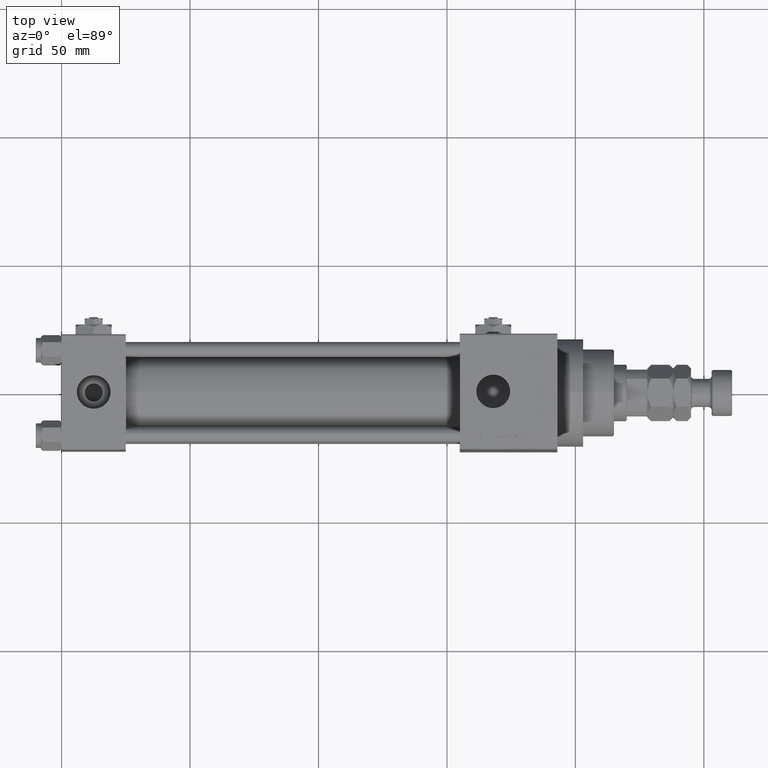
[diagram: clean part render]
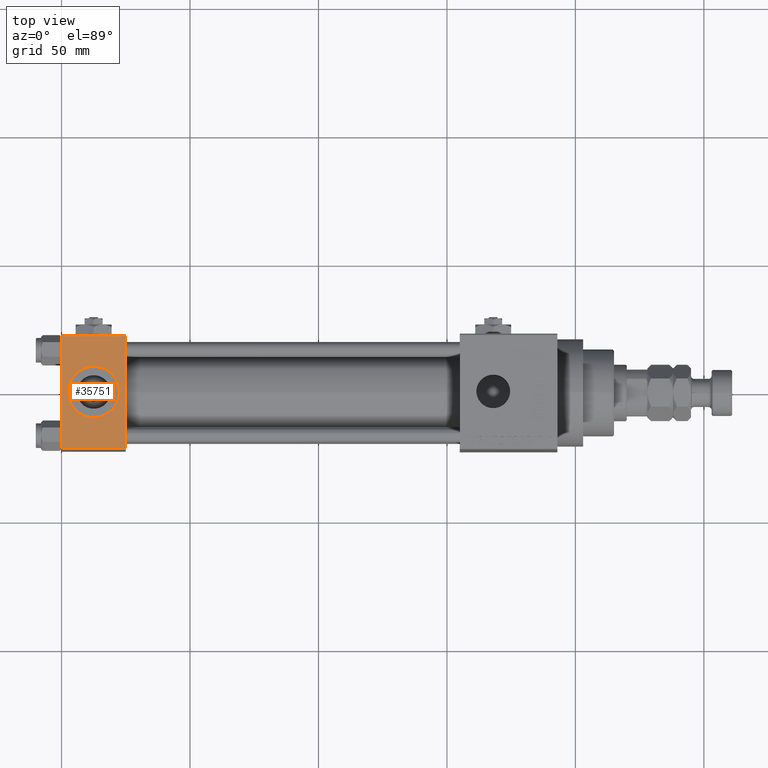
[diagram: same view with one face highlighted and labeled with its STEP entity id]
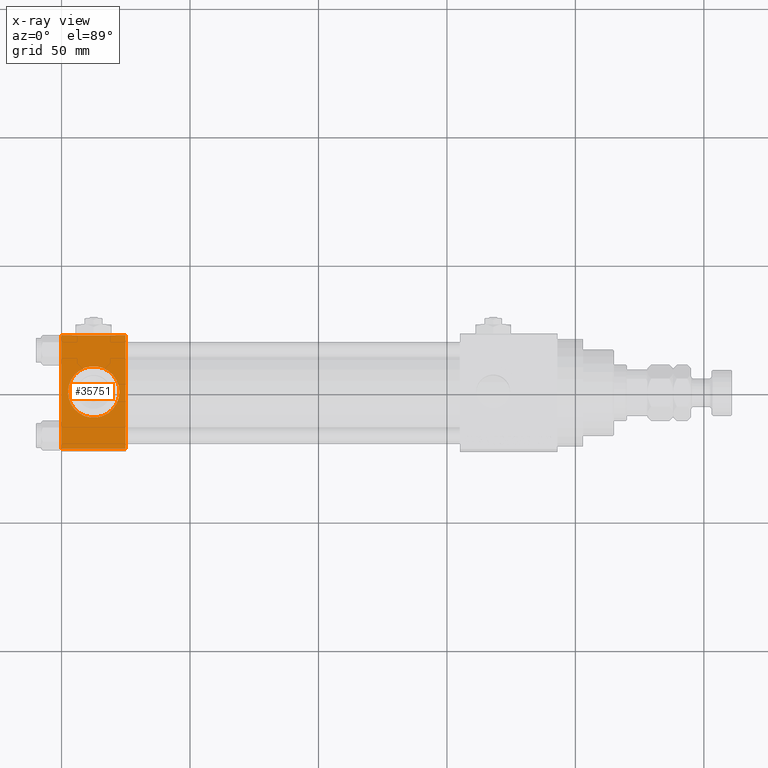
[diagram: x-ray of the same camera — body ghosted, the highlighted face saturated]
A machine part, top view. The second image highlights one B-rep face of the part: STEP entity #35751.
The next image is the same camera in x-ray: the body ghosted, the highlighted face saturated — about 0% of this face is hidden behind the body in this view.
In plain terms, the highlighted planar face has unit normal (0, 0, -1).
Its self-contained STEP definition (entity closure, byte-faithful):
#1350 = CARTESIAN_POINT ( 'NONE',  ( 0.000000000000000000, -21.99999999999997868, 22.50000000000000000 ) ) ;
#2895 = ORIENTED_EDGE ( 'NONE', *, *, #29159, .T. ) ;
#2974 = VECTOR ( 'NONE', #17215, 1000.000000000000000 ) ;
#3255 = CARTESIAN_POINT ( 'NONE',  ( 25.00000000000000000, -21.99999999999997868, 22.50000000000000000 ) ) ;
#4536 = AXIS2_PLACEMENT_3D ( 'NONE', #6333, #14544, #37424 ) ;
#4578 = CARTESIAN_POINT ( 'NONE',  ( 0.000000000000000000, 22.50000000000000000, 22.50000000000000355 ) ) ;
#4827 = LINE ( 'NONE', #4578, #48775 ) ;
#4933 = CARTESIAN_POINT ( 'NONE',  ( 12.50000000000000000, -1.734723475976807094E-15, 22.50000000000000000 ) ) ;
#5082 = EDGE_CURVE ( 'NONE', #30132, #36727, #36790, .T. ) ;
#6333 = CARTESIAN_POINT ( 'NONE',  ( 25.00000000000000000, 22.50000000000000000, 22.50000000000000355 ) ) ;
#12703 = EDGE_LOOP ( 'NONE', ( #26821, #26627 ) ) ;
#12728 = VERTEX_POINT ( 'NONE', #1350 ) ;
#13186 = CIRCLE ( 'NONE', #38610, 9.999999999999998224 ) ;
#14288 = FACE_BOUND ( 'NONE', #12703, .T. ) ;
#14544 = DIRECTION ( 'NONE',  ( 0.000000000000000000, 7.709882115452476934E-17, -1.000000000000000000 ) ) ;
#14819 = CARTESIAN_POINT ( 'NONE',  ( 12.50000000000000000, -1.734723475976807094E-15, 22.50000000000000000 ) ) ;
#16509 = CARTESIAN_POINT ( 'NONE',  ( 25.00000000000000000, -21.99999999999999289, 22.50000000000000000 ) ) ;
#17215 = DIRECTION ( 'NONE',  ( 0.000000000000000000, -1.000000000000000000, -7.709882115452476934E-17 ) ) ;
#17359 = CIRCLE ( 'NONE', #47690, 9.999999999999998224 ) ;
#17500 = CARTESIAN_POINT ( 'NONE',  ( 0.000000000000000000, 21.99999999999999289, 22.50000000000000355 ) ) ;
#19401 = EDGE_CURVE ( 'NONE', #43008, #40168, #13186, .T. ) ;
#20088 = DIRECTION ( 'NONE',  ( 0.000000000000000000, 0.000000000000000000, 1.000000000000000000 ) ) ;
#20491 = DIRECTION ( 'NONE',  ( 0.000000000000000000, -1.000000000000000000, -7.709882115452476934E-17 ) ) ;
#20839 = DIRECTION ( 'NONE',  ( 1.000000000000000000, 0.000000000000000000, 0.000000000000000000 ) ) ;
#21008 = CARTESIAN_POINT ( 'NONE',  ( 0.000000000000000000, 21.99999999999999289, 22.50000000000000355 ) ) ;
#21167 = VERTEX_POINT ( 'NONE', #3255 ) ;
#21177 = EDGE_CURVE ( 'NONE', #40168, #43008, #17359, .T. ) ;
#24163 = VECTOR ( 'NONE', #43747, 1000.000000000000000 ) ;
#24992 = EDGE_CURVE ( 'NONE', #12728, #21167, #36055, .T. ) ;
#26627 = ORIENTED_EDGE ( 'NONE', *, *, #19401, .F. ) ;
#26821 = ORIENTED_EDGE ( 'NONE', *, *, #21177, .F. ) ;
#28436 = CARTESIAN_POINT ( 'NONE',  ( 2.500000000000003997, -5.100766768294543310E-16, 22.50000000000000000 ) ) ;
#29159 = EDGE_CURVE ( 'NONE', #36727, #12728, #4827, .T. ) ;
#30132 = VERTEX_POINT ( 'NONE', #34623 ) ;
#30910 = CARTESIAN_POINT ( 'NONE',  ( 22.50000000000000000, -1.734723475976807094E-15, 22.50000000000000000 ) ) ;
#32145 = CARTESIAN_POINT ( 'NONE',  ( 25.00000000000000000, 22.50000000000000000, 22.50000000000000355 ) ) ;
#32952 = DIRECTION ( 'NONE',  ( -1.000000000000000000, 0.000000000000000000, 0.000000000000000000 ) ) ;
#34623 = CARTESIAN_POINT ( 'NONE',  ( 25.00000000000000000, 21.99999999999999289, 22.50000000000000355 ) ) ;
#35751 = ADVANCED_FACE ( 'NONE', ( #14288, #49756 ), #49245, .F. ) ;
#36055 = LINE ( 'NONE', #16509, #24163 ) ;
#36275 = EDGE_CURVE ( 'NONE', #30132, #21167, #40588, .T. ) ;
#36727 = VERTEX_POINT ( 'NONE', #21008 ) ;
#36790 = LINE ( 'NONE', #17500, #50536 ) ;
#37424 = DIRECTION ( 'NONE',  ( 0.000000000000000000, 1.000000000000000000, 7.709882115452476934E-17 ) ) ;
#37960 = ORIENTED_EDGE ( 'NONE', *, *, #24992, .T. ) ;
#38610 = AXIS2_PLACEMENT_3D ( 'NONE', #4933, #20088, #20839 ) ;
#39420 = ORIENTED_EDGE ( 'NONE', *, *, #5082, .T. ) ;
#40168 = VERTEX_POINT ( 'NONE', #30910 ) ;
#40588 = LINE ( 'NONE', #32145, #2974 ) ;
#42044 = DIRECTION ( 'NONE',  ( 1.000000000000000000, 0.000000000000000000, 0.000000000000000000 ) ) ;
#43008 = VERTEX_POINT ( 'NONE', #28436 ) ;
#43747 = DIRECTION ( 'NONE',  ( 1.000000000000000000, 0.000000000000000000, 0.000000000000000000 ) ) ;
#44203 = EDGE_LOOP ( 'NONE', ( #2895, #37960, #46868, #39420 ) ) ;
#46868 = ORIENTED_EDGE ( 'NONE', *, *, #36275, .F. ) ;
#47690 = AXIS2_PLACEMENT_3D ( 'NONE', #14819, #50522, #42044 ) ;
#48775 = VECTOR ( 'NONE', #20491, 1000.000000000000000 ) ;
#49245 = PLANE ( 'NONE',  #4536 ) ;
#49756 = FACE_OUTER_BOUND ( 'NONE', #44203, .T. ) ;
#50522 = DIRECTION ( 'NONE',  ( 0.000000000000000000, 0.000000000000000000, 1.000000000000000000 ) ) ;
#50536 = VECTOR ( 'NONE', #32952, 1000.000000000000000 ) ;